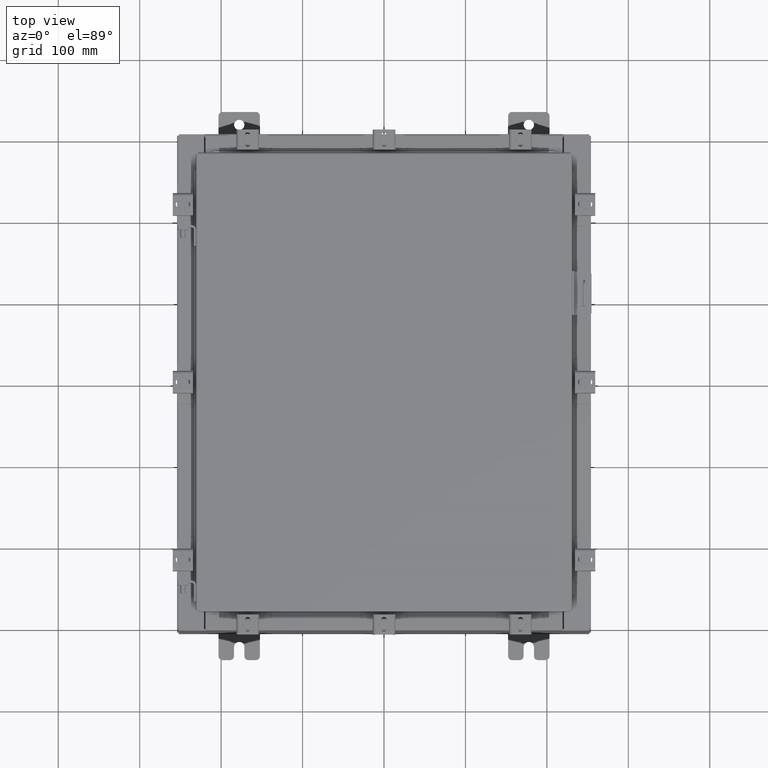
[diagram: clean part render]
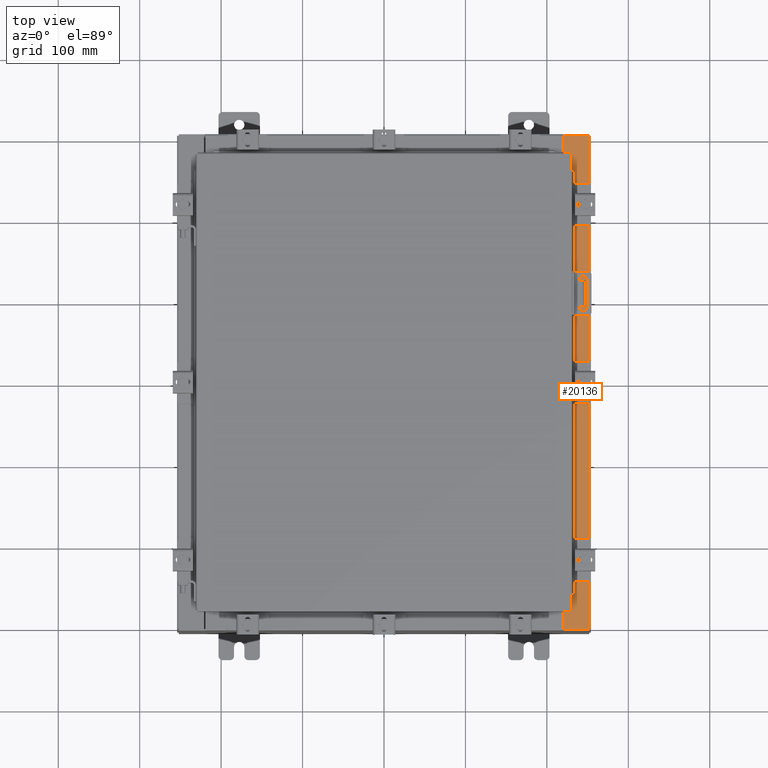
[diagram: same view with one face highlighted and labeled with its STEP entity id]
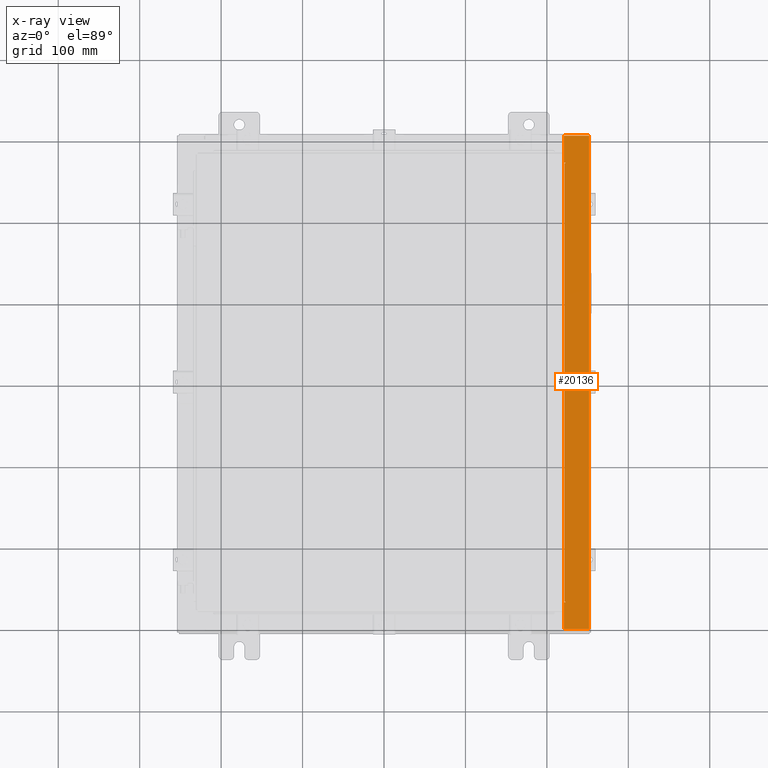
[diagram: x-ray of the same camera — body ghosted, the highlighted face saturated]
A machine part, top view. The second image highlights one B-rep face of the part: STEP entity #20136.
The next image is the same camera in x-ray: the body ghosted, the highlighted face saturated — about 0% of this face is hidden behind the body in this view.
In plain terms, the highlighted planar face has unit normal (-0, 0, -1).
Its self-contained STEP definition (entity closure, byte-faithful):
#232 = EDGE_CURVE ( 'NONE', #8684, #7058, #5818, .T. ) ;
#828 = EDGE_CURVE ( 'NONE', #7058, #19097, #18047, .T. ) ;
#1092 = LINE ( 'NONE', #3042, #9883 ) ;
#1157 = VERTEX_POINT ( 'NONE', #17574 ) ;
#1559 = CARTESIAN_POINT ( 'NONE',  ( 5.335691853495948400E-014, 11.92529999999999800, 9.925300000000055100 ) ) ;
#1656 = CARTESIAN_POINT ( 'NONE',  ( 8.750050000000037200, -10.61242499999999800, 9.925300000000007100 ) ) ;
#2075 = CARTESIAN_POINT ( 'NONE',  ( 9.912300000000035600, -11.92530000000000000, 9.925300000000001800 ) ) ;
#2109 = ORIENTED_EDGE ( 'NONE', *, *, #4681, .T. ) ;
#2113 = VECTOR ( 'NONE', #17579, 39.37007874015748100 ) ;
#2278 = LINE ( 'NONE', #15160, #6386 ) ;
#2479 = VERTEX_POINT ( 'NONE', #15321 ) ;
#2503 = AXIS2_PLACEMENT_3D ( 'NONE', #1656, #13912, #3449 ) ;
#2621 = LINE ( 'NONE', #12848, #20071 ) ;
#2734 = DIRECTION ( 'NONE',  ( -6.427586101948161900E-031, -1.000000000000000000, 3.438483328337737900E-045 ) ) ;
#3042 = CARTESIAN_POINT ( 'NONE',  ( 8.712700000000035400, 10.59374999999999600, 9.925300000000007100 ) ) ;
#3207 = AXIS2_PLACEMENT_3D ( 'NONE', #17682, #7253, #19414 ) ;
#3449 = DIRECTION ( 'NONE',  ( 1.000000000000000000, 0.0000000000000000000, 0.0000000000000000000 ) ) ;
#3537 = EDGE_CURVE ( 'NONE', #9229, #19504, #17411, .T. ) ;
#4480 = CARTESIAN_POINT ( 'NONE',  ( 8.712700000000035400, -10.59374999999999800, 9.925300000000007100 ) ) ;
#4681 = EDGE_CURVE ( 'NONE', #15073, #20228, #17372, .T. ) ;
#4705 = VECTOR ( 'NONE', #21101, 39.37007874015748100 ) ;
#4798 = VERTEX_POINT ( 'NONE', #13514 ) ;
#4816 = DIRECTION ( 'NONE',  ( 1.000000000000000000, 0.0000000000000000000, 0.0000000000000000000 ) ) ;
#5599 = VERTEX_POINT ( 'NONE', #10841 ) ;
#5818 = CIRCLE ( 'NONE', #2503, 0.01867499999999949400 ) ;
#6224 = CARTESIAN_POINT ( 'NONE',  ( 8.750050000000037200, 10.61242499999999500, 9.925300000000007100 ) ) ;
#6386 = VECTOR ( 'NONE', #11640, 39.37007874015748100 ) ;
#6966 = CARTESIAN_POINT ( 'NONE',  ( 8.699700000000035500, 11.92529999999999600, 9.925300000000008900 ) ) ;
#7058 = VERTEX_POINT ( 'NONE', #20576 ) ;
#7253 = DIRECTION ( 'NONE',  ( -5.349571789159783800E-015, 0.0000000000000000000, -1.000000000000000000 ) ) ;
#7994 = DIRECTION ( 'NONE',  ( 1.000000000000000000, 0.0000000000000000000, 0.0000000000000000000 ) ) ;
#8684 = VERTEX_POINT ( 'NONE', #13586 ) ;
#9229 = VERTEX_POINT ( 'NONE', #10893 ) ;
#9244 = VECTOR ( 'NONE', #20011, 39.37007874015748100 ) ;
#9595 = ORIENTED_EDGE ( 'NONE', *, *, #14788, .F. ) ;
#9810 = EDGE_CURVE ( 'NONE', #5599, #19504, #18121, .T. ) ;
#9883 = VECTOR ( 'NONE', #4816, 39.37007874015748100 ) ;
#10841 = CARTESIAN_POINT ( 'NONE',  ( 9.912300000000035600, 11.92529999999999800, 9.925300000000001800 ) ) ;
#10893 = CARTESIAN_POINT ( 'NONE',  ( 8.699700000000035500, -11.92530000000000000, 9.925300000000008900 ) ) ;
#10966 = VERTEX_POINT ( 'NONE', #16375 ) ;
#10967 = EDGE_CURVE ( 'NONE', #4798, #8684, #2621, .T. ) ;
#11203 = ORIENTED_EDGE ( 'NONE', *, *, #15243, .F. ) ;
#11330 = LINE ( 'NONE', #21608, #20026 ) ;
#11640 = DIRECTION ( 'NONE',  ( -0.0000000000000000000, 1.000000000000000000, -0.0000000000000000000 ) ) ;
#11659 = ORIENTED_EDGE ( 'NONE', *, *, #13010, .F. ) ;
#11711 = ORIENTED_EDGE ( 'NONE', *, *, #12393, .F. ) ;
#11909 = ORIENTED_EDGE ( 'NONE', *, *, #22558, .T. ) ;
#12393 = EDGE_CURVE ( 'NONE', #2479, #10966, #16269, .T. ) ;
#12430 = PLANE ( 'NONE',  #3207 ) ;
#12618 = DIRECTION ( 'NONE',  ( -0.0000000000000000000, -1.000000000000000000, -0.0000000000000000000 ) ) ;
#12697 = ORIENTED_EDGE ( 'NONE', *, *, #22037, .T. ) ;
#12735 = VECTOR ( 'NONE', #2734, 39.37007874015748100 ) ;
#12848 = CARTESIAN_POINT ( 'NONE',  ( 8.699700000000035500, -10.63109999999999600, 9.925300000000007100 ) ) ;
#12981 = DIRECTION ( 'NONE',  ( -1.000000000000000000, 4.340572780399910900E-014, 0.0000000000000000000 ) ) ;
#13010 = EDGE_CURVE ( 'NONE', #19097, #1157, #2278, .T. ) ;
#13071 = AXIS2_PLACEMENT_3D ( 'NONE', #6224, #18404, #7994 ) ;
#13309 = ORIENTED_EDGE ( 'NONE', *, *, #9810, .F. ) ;
#13514 = CARTESIAN_POINT ( 'NONE',  ( 8.699700000000035500, -10.63109999999999600, 9.925300000000008900 ) ) ;
#13586 = CARTESIAN_POINT ( 'NONE',  ( 8.750050000000037200, -10.63109999999999600, 9.925300000000008900 ) ) ;
#13912 = DIRECTION ( 'NONE',  ( 5.349571789159783800E-015, 0.0000000000000000000, 1.000000000000000000 ) ) ;
#13996 = ORIENTED_EDGE ( 'NONE', *, *, #828, .F. ) ;
#14036 = ORIENTED_EDGE ( 'NONE', *, *, #232, .F. ) ;
#14788 = EDGE_CURVE ( 'NONE', #1157, #2479, #1092, .T. ) ;
#14989 = CARTESIAN_POINT ( 'NONE',  ( 8.699700000000035500, -5.591807081111829600E-030, 9.925300000000008900 ) ) ;
#15073 = VERTEX_POINT ( 'NONE', #6966 ) ;
#15160 = CARTESIAN_POINT ( 'NONE',  ( 8.712700000000035400, -10.59375000000000000, 9.925300000000007100 ) ) ;
#15243 = EDGE_CURVE ( 'NONE', #10966, #20228, #11330, .T. ) ;
#15321 = CARTESIAN_POINT ( 'NONE',  ( 8.750050000000037200, 10.59374999999999600, 9.925300000000008900 ) ) ;
#15393 = EDGE_LOOP ( 'NONE', ( #18970, #11909, #20638, #13309, #12697, #2109, #11203, #11711, #9595, #11659, #13996, #14036 ) ) ;
#15585 = DIRECTION ( 'NONE',  ( -1.000000000000000000, 8.758115402030108600E-047, 5.349571789159784600E-015 ) ) ;
#16087 = LINE ( 'NONE', #19322, #2113 ) ;
#16269 = CIRCLE ( 'NONE', #13071, 0.01867499999999949400 ) ;
#16375 = CARTESIAN_POINT ( 'NONE',  ( 8.750050000000037200, 10.63109999999999500, 9.925300000000008900 ) ) ;
#16633 = CARTESIAN_POINT ( 'NONE',  ( 5.335691853495948400E-014, -11.92530000000000000, 9.925300000000055100 ) ) ;
#17372 = LINE ( 'NONE', #14989, #12735 ) ;
#17411 = LINE ( 'NONE', #16633, #9244 ) ;
#17574 = CARTESIAN_POINT ( 'NONE',  ( 8.712700000000035400, 10.59374999999999600, 9.925300000000007100 ) ) ;
#17579 = DIRECTION ( 'NONE',  ( -6.427586101948161900E-031, -1.000000000000000000, 3.438483328337737900E-045 ) ) ;
#17636 = CARTESIAN_POINT ( 'NONE',  ( 8.750050000000037200, -10.59374999999999800, 9.925300000000007100 ) ) ;
#17682 = CARTESIAN_POINT ( 'NONE',  ( 5.335691853495948400E-014, 0.0000000000000000000, 9.925300000000055100 ) ) ;
#17693 = FACE_OUTER_BOUND ( 'NONE', #15393, .T. ) ;
#17900 = LINE ( 'NONE', #1559, #21950 ) ;
#17937 = CARTESIAN_POINT ( 'NONE',  ( 9.912300000000035600, -11.92530000000000000, 9.925300000000001800 ) ) ;
#18047 = LINE ( 'NONE', #17636, #4705 ) ;
#18121 = LINE ( 'NONE', #2075, #22182 ) ;
#18404 = DIRECTION ( 'NONE',  ( 5.349571789159783800E-015, 0.0000000000000000000, 1.000000000000000000 ) ) ;
#18970 = ORIENTED_EDGE ( 'NONE', *, *, #10967, .F. ) ;
#19097 = VERTEX_POINT ( 'NONE', #4480 ) ;
#19322 = CARTESIAN_POINT ( 'NONE',  ( 8.699700000000035500, -5.591807081111829600E-030, 9.925300000000008900 ) ) ;
#19414 = DIRECTION ( 'NONE',  ( -1.000000000000000000, 0.0000000000000000000, 5.349571789159783800E-015 ) ) ;
#19504 = VERTEX_POINT ( 'NONE', #17937 ) ;
#19641 = CARTESIAN_POINT ( 'NONE',  ( 8.699700000000035500, 10.63109999999999600, 9.925300000000008900 ) ) ;
#20011 = DIRECTION ( 'NONE',  ( 1.000000000000000000, 1.633973368572597200E-031, -5.349571789159784600E-015 ) ) ;
#20026 = VECTOR ( 'NONE', #12981, 39.37007874015748100 ) ;
#20071 = VECTOR ( 'NONE', #21555, 39.37007874015748100 ) ;
#20136 = ADVANCED_FACE ( 'NONE', ( #17693 ), #12430, .F. ) ;
#20228 = VERTEX_POINT ( 'NONE', #19641 ) ;
#20576 = CARTESIAN_POINT ( 'NONE',  ( 8.750050000000037200, -10.59374999999999800, 9.925300000000008900 ) ) ;
#20638 = ORIENTED_EDGE ( 'NONE', *, *, #3537, .T. ) ;
#21101 = DIRECTION ( 'NONE',  ( -1.000000000000000000, 0.0000000000000000000, 0.0000000000000000000 ) ) ;
#21555 = DIRECTION ( 'NONE',  ( 1.000000000000000000, 0.0000000000000000000, 0.0000000000000000000 ) ) ;
#21608 = CARTESIAN_POINT ( 'NONE',  ( 8.750050000000037200, 10.63109999999999500, 9.925300000000007100 ) ) ;
#21950 = VECTOR ( 'NONE', #15585, 39.37007874015748100 ) ;
#22037 = EDGE_CURVE ( 'NONE', #5599, #15073, #17900, .T. ) ;
#22182 = VECTOR ( 'NONE', #12618, 39.37007874015748100 ) ;
#22558 = EDGE_CURVE ( 'NONE', #4798, #9229, #16087, .T. ) ;